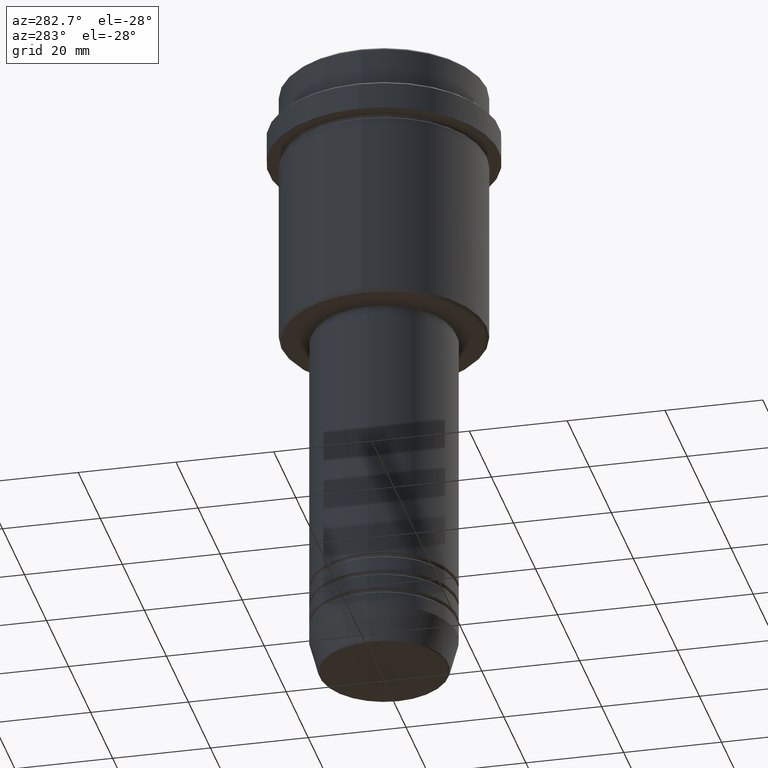
[diagram: clean part render]
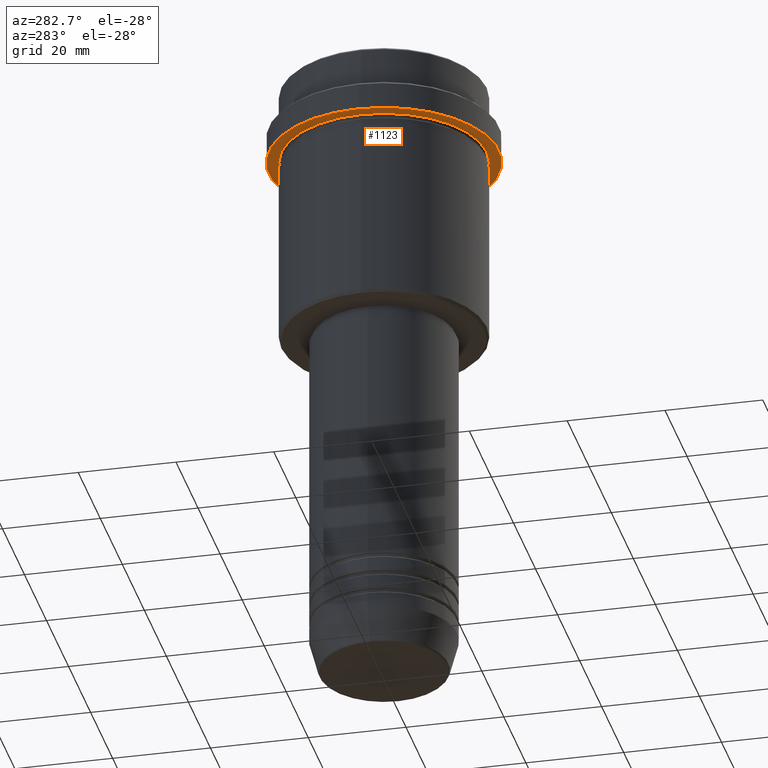
[diagram: same view with one face highlighted and labeled with its STEP entity id]
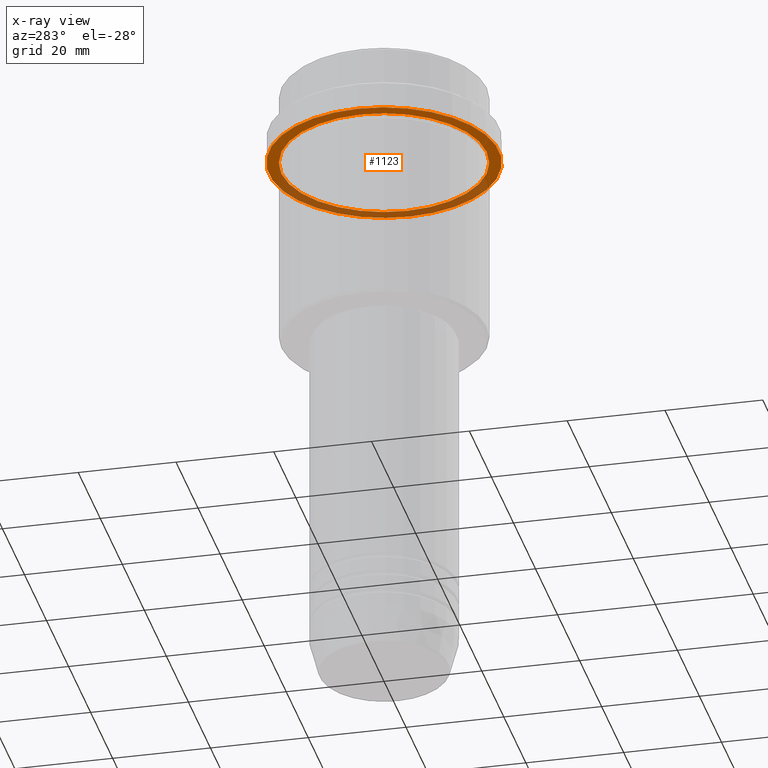
[diagram: x-ray of the same camera — body ghosted, the highlighted face saturated]
A machine part, auxiliary view. The second image highlights one B-rep face of the part: STEP entity #1123.
The next image is the same camera in x-ray: the body ghosted, the highlighted face saturated — about 38% of this face is hidden behind the body in this view.
In plain terms, the highlighted planar face has unit normal (0, 0, -1).
Its self-contained STEP definition (entity closure, byte-faithful):
#58 = EDGE_LOOP ( 'NONE', ( #397, #988 ) ) ;
#59 = AXIS2_PLACEMENT_3D ( 'NONE', #862, #410, #954 ) ;
#143 = FACE_OUTER_BOUND ( 'NONE', #706, .T. ) ;
#205 = EDGE_CURVE ( 'NONE', #1403, #510, #664, .T. ) ;
#270 = PLANE ( 'NONE',  #398 ) ;
#280 = CARTESIAN_POINT ( 'NONE',  ( 0.000000000000000000, 0.000000000000000000, -15.00000000000000178 ) ) ;
#308 = VERTEX_POINT ( 'NONE', #698 ) ;
#320 = ORIENTED_EDGE ( 'NONE', *, *, #669, .F. ) ;
#333 = EDGE_CURVE ( 'NONE', #308, #958, #1386, .T. ) ;
#365 = DIRECTION ( 'NONE',  ( -0.000000000000000000, -0.000000000000000000, 1.000000000000000000 ) ) ;
#397 = ORIENTED_EDGE ( 'NONE', *, *, #775, .T. ) ;
#398 = AXIS2_PLACEMENT_3D ( 'NONE', #778, #912, #692 ) ;
#410 = DIRECTION ( 'NONE',  ( -0.000000000000000000, -0.000000000000000000, 1.000000000000000000 ) ) ;
#510 = VERTEX_POINT ( 'NONE', #886 ) ;
#511 = CARTESIAN_POINT ( 'NONE',  ( 23.50000000000000355, 0.000000000000000000, -15.00000000000000178 ) ) ;
#563 = DIRECTION ( 'NONE',  ( 1.000000000000000000, 0.000000000000000000, 0.000000000000000000 ) ) ;
#573 = CIRCLE ( 'NONE', #59, 20.99999999999999289 ) ;
#664 = CIRCLE ( 'NONE', #1197, 23.50000000000000355 ) ;
#669 = EDGE_CURVE ( 'NONE', #510, #1403, #975, .T. ) ;
#692 = DIRECTION ( 'NONE',  ( -1.000000000000000000, 0.000000000000000000, -0.000000000000000000 ) ) ;
#698 = CARTESIAN_POINT ( 'NONE',  ( 20.99999999999999289, 2.571758278209440872E-15, -15.00000000000000178 ) ) ;
#706 = EDGE_LOOP ( 'NONE', ( #1326, #320 ) ) ;
#707 = DIRECTION ( 'NONE',  ( -0.000000000000000000, -0.000000000000000000, 1.000000000000000000 ) ) ;
#775 = EDGE_CURVE ( 'NONE', #958, #308, #573, .T. ) ;
#777 = CARTESIAN_POINT ( 'NONE',  ( 0.000000000000000000, 0.000000000000000000, -15.00000000000000178 ) ) ;
#778 = CARTESIAN_POINT ( 'NONE',  ( 0.000000000000000000, 23.50000000000000355, -15.00000000000000178 ) ) ;
#806 = AXIS2_PLACEMENT_3D ( 'NONE', #280, #928, #845 ) ;
#845 = DIRECTION ( 'NONE',  ( -1.000000000000000000, 0.000000000000000000, 0.000000000000000000 ) ) ;
#862 = CARTESIAN_POINT ( 'NONE',  ( 0.000000000000000000, 0.000000000000000000, -15.00000000000000178 ) ) ;
#886 = CARTESIAN_POINT ( 'NONE',  ( -23.50000000000000711, 2.877919977996281109E-15, -15.00000000000000178 ) ) ;
#912 = DIRECTION ( 'NONE',  ( 0.000000000000000000, 0.000000000000000000, -1.000000000000000000 ) ) ;
#913 = CARTESIAN_POINT ( 'NONE',  ( -20.99999999999999289, 0.000000000000000000, -15.00000000000000178 ) ) ;
#928 = DIRECTION ( 'NONE',  ( -0.000000000000000000, -0.000000000000000000, 1.000000000000000000 ) ) ;
#954 = DIRECTION ( 'NONE',  ( -1.000000000000000000, 0.000000000000000000, 0.000000000000000000 ) ) ;
#958 = VERTEX_POINT ( 'NONE', #913 ) ;
#975 = CIRCLE ( 'NONE', #1112, 23.50000000000000355 ) ;
#988 = ORIENTED_EDGE ( 'NONE', *, *, #333, .T. ) ;
#1112 = AXIS2_PLACEMENT_3D ( 'NONE', #1279, #707, #1365 ) ;
#1123 = ADVANCED_FACE ( 'NONE', ( #1253, #143 ), #270, .T. ) ;
#1197 = AXIS2_PLACEMENT_3D ( 'NONE', #777, #365, #563 ) ;
#1253 = FACE_BOUND ( 'NONE', #58, .T. ) ;
#1279 = CARTESIAN_POINT ( 'NONE',  ( 0.000000000000000000, 0.000000000000000000, -15.00000000000000178 ) ) ;
#1326 = ORIENTED_EDGE ( 'NONE', *, *, #205, .F. ) ;
#1365 = DIRECTION ( 'NONE',  ( 1.000000000000000000, 0.000000000000000000, 0.000000000000000000 ) ) ;
#1386 = CIRCLE ( 'NONE', #806, 20.99999999999999289 ) ;
#1403 = VERTEX_POINT ( 'NONE', #511 ) ;